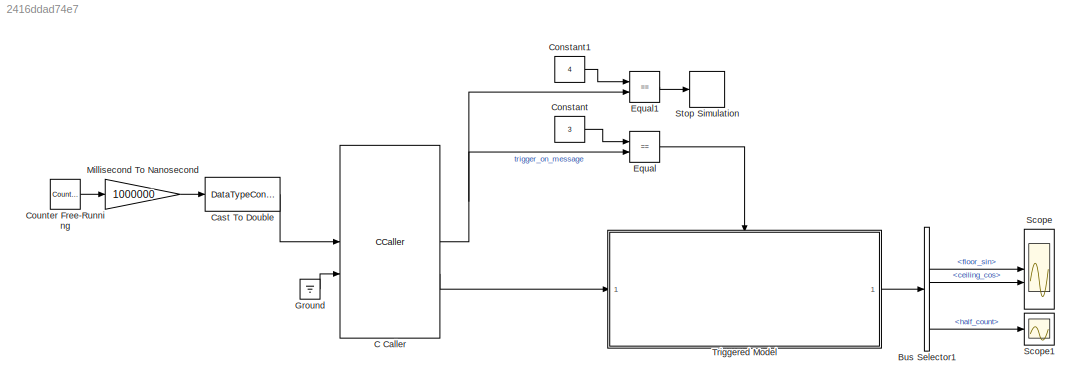
MODEL slx_2416ddad74e7
KIND model
CONFIG AbsTol = auto
CONFIG EnableMultiTasking = off
CONFIG FixedStep = 0.001
CONFIG MaxStep = auto
CONFIG MinStep = auto
CONFIG RelTol = 1e-3
CONFIG SampleTimeConstraint = Unconstrained
CONFIG SolverName = FixedStepAuto
CONFIG StartTime = 0.0
CONFIG StopTime = 10.0
BLOCK [BusSelector] Bus Selector1
  OutputSignals = floor_sin,ceiling_cos,half_count
BLOCK [CCaller] C Caller
  FunctionName = Replay
  PortSpecificationStruct = %)30     .    B 4   8    (     @         %    "     ,    !     0         %  0 "0    $    _    07)G3F%M90  4&]R=$YA;64 4V-O<&4     26YD97@     5'EP90      4VEZ90      27-';&]B86P   X    P    !@    @    $          4    (     0    ,    !         !   P!O=70 #@   #     &    "     0         !0    @    !     P    $         $  # &]U=  .    .     8    (    !          %    "     $    &     0         0    !@...<+1501ch>
BLOCK [DataTypeConversion] Cast To Double
  OutDataTypeStr = double
  RndMeth = Floor
  SaturateOnIntegerOverflow = off
BLOCK [Constant] Constant
  OutDataTypeStr = Inherit: Inherit via back propagation
  Value = 3
BLOCK [Constant] Constant1
  OutDataTypeStr = Inherit: Inherit via back propagation
  Value = 4
BLOCK [Reference] Counter Free-Running  REF=simulink/Sources/Counter
Free-Running
  SourceBlock = simulink/Sources/Counter\nFree-Running
  SourceType = Counter Free-Running
BLOCK [RelationalOperator] Equal
  InputSameDT = off
  Operator = ==
  OutDataTypeStr = boolean
  RndMeth = Simplest
BLOCK [RelationalOperator] Equal1
  InputSameDT = off
  Operator = ==
  OutDataTypeStr = boolean
  RndMeth = Simplest
BLOCK [Ground] Ground
BLOCK [Gain] Millisecond To Nanosecond
  Gain = 1000000
  OutDataTypeStr = uint64
BLOCK [Scope] Scope
  Floating = off
  NumInputPorts = 2
  ScopeSpecificationString = Simulink.scopes.TimeScopeBlockCfg('CurrentConfiguration', extmgr.ConfigurationSet(extmgr.Configuration('Core','General UI',true),extmgr.Configuration('Core','Source UI',true),extmgr.Configuration('Sources','WiredSimulink',true),extmgr.Configuration('Visuals','Time Domain',true,'SerializedDisplays',{struct('MinYLimReal','-1.00000','MaxYLimReal','1.00000','YLabelReal','','MinYLimMag','0.00000','MaxY...<+1481ch>
BLOCK [Scope] Scope1
  Floating = off
  NumInputPorts = 1
  ScopeSpecificationString = Simulink.scopes.TimeScopeBlockCfg('CurrentConfiguration', extmgr.ConfigurationSet(extmgr.Configuration('Core','General UI',true),extmgr.Configuration('Core','Source UI',true),extmgr.Configuration('Sources','WiredSimulink',true,'DataLoggingVariableName','ScopeData1'),extmgr.Configuration('Visuals','Time Domain',true),extmgr.Configuration('Tools','Plot Navigation',true),extmgr.Configuration('Tools',...<+40ch>
BLOCK [Stop] Stop Simulation
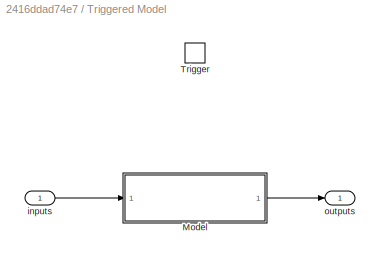
BLOCK [SubSystem] Triggered Model
  TreatAsAtomicUnit = on
BLOCK [ModelReference] Triggered Model/Model
  ModelNameDialog = model.slx
  ModelReferenceVersion = 4.59
BLOCK [TriggerPort] Triggered Model/Trigger
  StatesWhenEnabling = held
  VariantControl = (inherit)
BLOCK [Inport] Triggered Model/inputs
BLOCK [Outport] Triggered Model/outputs
LINE Bus Selector1:1 -> Scope:1
LINE Bus Selector1:2 -> Scope:2
LINE Bus Selector1:3 -> Scope1:1
NET C Caller:1 -> Equal1:2, Equal:2
LINE C Caller:2 -> Triggered Model:1
LINE Cast To Double:1 -> C Caller:1
LINE Constant1:1 -> Equal1:1
LINE Constant:1 -> Equal:1
LINE Counter Free-Running:1 -> Millisecond To Nanosecond:1
LINE Equal1:1 -> Stop Simulation:1
LINE Equal:1 -> Triggered Model:trigger
LINE Ground:1 -> C Caller:2
LINE Millisecond To Nanosecond:1 -> Cast To Double:1
LINE Triggered Model/Model:1 -> Triggered Model/outputs:1
LINE Triggered Model/inputs:1 -> Triggered Model/Model:1
LINE Triggered Model:1 -> Bus Selector1:1
note: NET lines group one-source signal fan-out (src -> all destinations, sorted); 1:1 wires keep LINE
